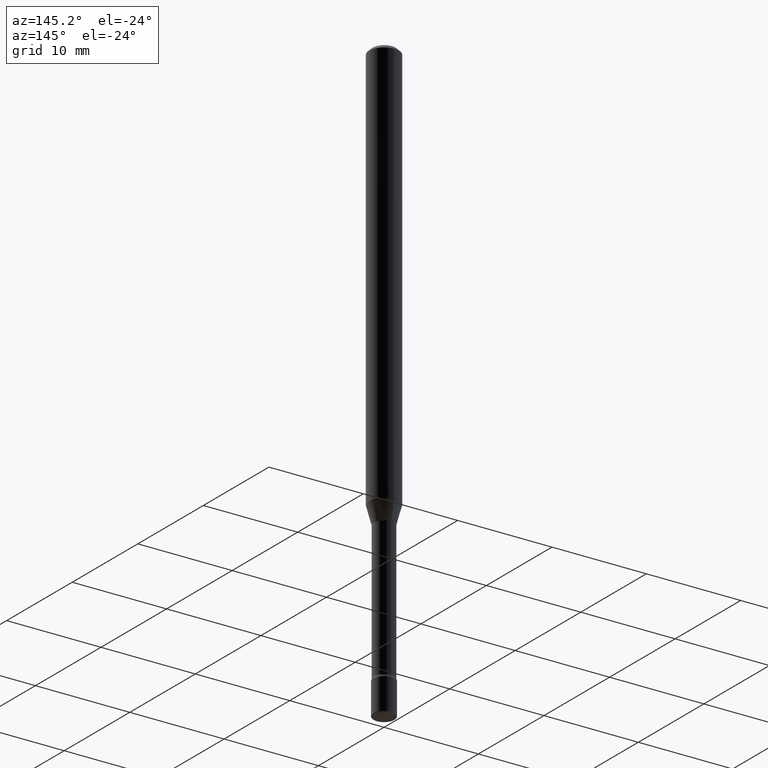
[diagram: clean part render]
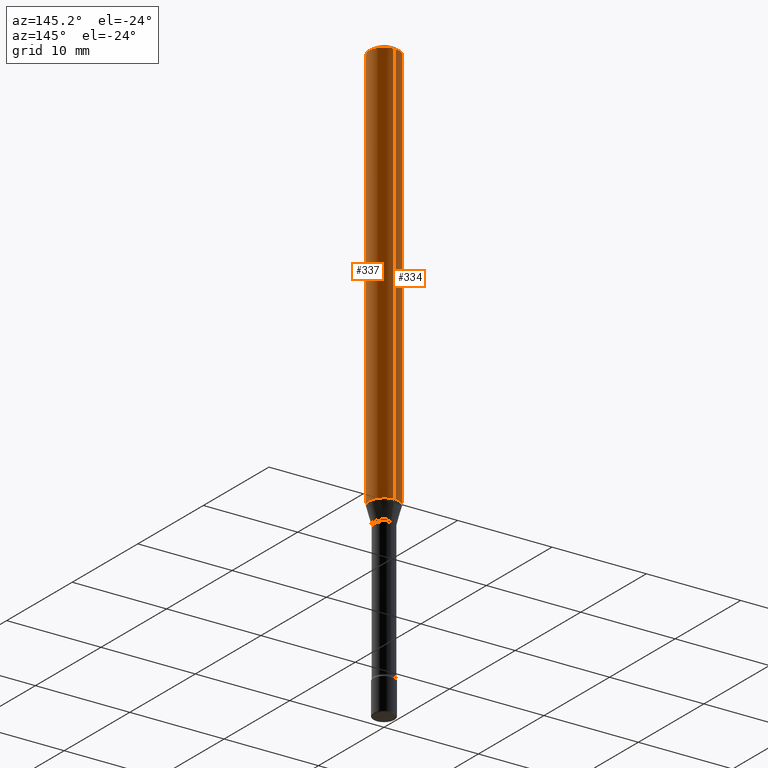
[diagram: same view with one multi-face feature highlighted, each face labeled with its STEP entity id]
A machine part, auxiliary view. The highlighted faces form ONE feature: a constant-radius fillet chain: 2 tangent blend faces with common blend radius 1.5875 mm. The faces share edges in the B-rep.
Their STEP definitions:
[1] entity #334 (Cylinder):
#2 = CARTESIAN_POINT ( 'NONE',  ( -4.364351673553916201E-16, -0.06250000000000000000, 6.963011286457598096E-16 ) ) ;
#23 = AXIS2_PLACEMENT_3D ( 'NONE', #252, #511, #415 ) ;
#33 = CYLINDRICAL_SURFACE ( 'NONE', #168, 0.06250000000000000000 ) ;
#36 = CARTESIAN_POINT ( 'NONE',  ( 4.440892098500625669E-16, 0.06250000000000000000, 2.598456691367323168E-16 ) ) ;
#64 = CIRCLE ( 'NONE', #23, 0.06250000000000000000 ) ;
#71 = EDGE_LOOP ( 'NONE', ( #355, #381, #341, #285 ) ) ;
#90 = DIRECTION ( 'NONE',  ( -2.445355446703953584E-29, 3.491643676072220337E-15, 1.000000000000000000 ) ) ;
#111 = CIRCLE ( 'NONE', #191, 0.06250000000000000000 ) ;
#137 = CARTESIAN_POINT ( 'NONE',  ( -4.364351673553912750E-16, -0.06250000000000005551, -0.01499999999999981036 ) ) ;
#158 = CARTESIAN_POINT ( 'NONE',  ( 4.440892098501044258E-16, 0.06249999999999408112, -1.704612573687109167 ) ) ;
#160 = VERTEX_POINT ( 'NONE', #158 ) ;
#168 = AXIS2_PLACEMENT_3D ( 'NONE', #517, #90, #174 ) ;
#171 = FACE_OUTER_BOUND ( 'NONE', #71, .T. ) ;
#174 = DIRECTION ( 'NONE',  ( -6.982962677686265922E-15, -1.000000000000000000, 3.491643676072219943E-15 ) ) ;
#182 = CARTESIAN_POINT ( 'NONE',  ( -4.364351673553497119E-16, -0.06250000000000591194, -1.704612573687108723 ) ) ;
#191 = AXIS2_PLACEMENT_3D ( 'NONE', #438, #563, #271 ) ;
#216 = EDGE_CURVE ( 'NONE', #220, #569, #64, .T. ) ;
#220 = VERTEX_POINT ( 'NONE', #372 ) ;
#252 = CARTESIAN_POINT ( 'NONE',  ( 3.668033170055936927E-31, -5.237465514108340440E-17, -0.01500000000000002720 ) ) ;
#271 = DIRECTION ( 'NONE',  ( -6.982962677686265922E-15, -1.000000000000000000, 4.370956789862821150E-15 ) ) ;
#285 = ORIENTED_EDGE ( 'NONE', *, *, #216, .F. ) ;
#297 = EDGE_CURVE ( 'NONE', #160, #552, #111, .T. ) ;
#308 = DIRECTION ( 'NONE',  ( -2.445355446703953584E-29, 3.491643676072220337E-15, 1.000000000000000000 ) ) ;
#334 = ADVANCED_FACE ( 'NONE', ( #171 ), #33, .T. ) ;
#341 = ORIENTED_EDGE ( 'NONE', *, *, #388, .T. ) ;
#347 = VECTOR ( 'NONE', #308, 39.37007874015748143 ) ;
#351 = EDGE_CURVE ( 'NONE', #160, #220, #441, .T. ) ;
#355 = ORIENTED_EDGE ( 'NONE', *, *, #351, .F. ) ;
#372 = CARTESIAN_POINT ( 'NONE',  ( 4.440892098501046230E-16, 0.06249999999999995143, -0.01500000000000024578 ) ) ;
#381 = ORIENTED_EDGE ( 'NONE', *, *, #297, .T. ) ;
#388 = EDGE_CURVE ( 'NONE', #552, #569, #485, .T. ) ;
#415 = DIRECTION ( 'NONE',  ( -6.982962677686265922E-15, -1.000000000000000000, 3.483106191921935554E-15 ) ) ;
#438 = CARTESIAN_POINT ( 'NONE',  ( 4.168383641585816332E-29, -5.951899713067785785E-15, -1.704612573687108945 ) ) ;
#441 = LINE ( 'NONE', #36, #347 ) ;
#455 = VECTOR ( 'NONE', #515, 39.37007874015748143 ) ;
#485 = LINE ( 'NONE', #2, #455 ) ;
#511 = DIRECTION ( 'NONE',  ( -2.445355446703953584E-29, 3.491643676072220337E-15, 1.000000000000000000 ) ) ;
#515 = DIRECTION ( 'NONE',  ( -2.445355446703953584E-29, 3.491643676072220337E-15, 1.000000000000000000 ) ) ;
#517 = CARTESIAN_POINT ( 'NONE',  ( -1.169113584055446105E-44, 1.669184350826100908E-30, 4.780733988912460139E-16 ) ) ;
#552 = VERTEX_POINT ( 'NONE', #182 ) ;
#563 = DIRECTION ( 'NONE',  ( -2.445355446703953584E-29, 3.491643676072220337E-15, 1.000000000000000000 ) ) ;
#569 = VERTEX_POINT ( 'NONE', #137 ) ;
[2] entity #337 (Cylinder):
#2 = CARTESIAN_POINT ( 'NONE',  ( -4.364351673553916201E-16, -0.06250000000000000000, 6.963011286457598096E-16 ) ) ;
#17 = AXIS2_PLACEMENT_3D ( 'NONE', #35, #38, #360 ) ;
#35 = CARTESIAN_POINT ( 'NONE',  ( 3.668033170055936927E-31, -5.237465514108340440E-17, -0.01500000000000002720 ) ) ;
#36 = CARTESIAN_POINT ( 'NONE',  ( 4.440892098500625669E-16, 0.06250000000000000000, 2.598456691367323168E-16 ) ) ;
#38 = DIRECTION ( 'NONE',  ( -2.445355446703953584E-29, 3.491643676072220337E-15, 1.000000000000000000 ) ) ;
#50 = EDGE_CURVE ( 'NONE', #552, #160, #518, .T. ) ;
#137 = CARTESIAN_POINT ( 'NONE',  ( -4.364351673553912750E-16, -0.06250000000000005551, -0.01499999999999981036 ) ) ;
#138 = AXIS2_PLACEMENT_3D ( 'NONE', #280, #453, #229 ) ;
#158 = CARTESIAN_POINT ( 'NONE',  ( 4.440892098501044258E-16, 0.06249999999999408112, -1.704612573687109167 ) ) ;
#160 = VERTEX_POINT ( 'NONE', #158 ) ;
#162 = AXIS2_PLACEMENT_3D ( 'NONE', #345, #357, #400 ) ;
#173 = ORIENTED_EDGE ( 'NONE', *, *, #50, .T. ) ;
#182 = CARTESIAN_POINT ( 'NONE',  ( -4.364351673553497119E-16, -0.06250000000000591194, -1.704612573687108723 ) ) ;
#220 = VERTEX_POINT ( 'NONE', #372 ) ;
#229 = DIRECTION ( 'NONE',  ( -6.982962677686265922E-15, -1.000000000000000000, 4.370956789862821150E-15 ) ) ;
#253 = EDGE_LOOP ( 'NONE', ( #173, #327, #419, #572 ) ) ;
#280 = CARTESIAN_POINT ( 'NONE',  ( 4.168383641585816332E-29, -5.951899713067785785E-15, -1.704612573687108945 ) ) ;
#308 = DIRECTION ( 'NONE',  ( -2.445355446703953584E-29, 3.491643676072220337E-15, 1.000000000000000000 ) ) ;
#327 = ORIENTED_EDGE ( 'NONE', *, *, #351, .T. ) ;
#337 = ADVANCED_FACE ( 'NONE', ( #392 ), #473, .T. ) ;
#345 = CARTESIAN_POINT ( 'NONE',  ( -1.169113584055446105E-44, 1.669184350826100908E-30, 4.780733988912460139E-16 ) ) ;
#347 = VECTOR ( 'NONE', #308, 39.37007874015748143 ) ;
#351 = EDGE_CURVE ( 'NONE', #160, #220, #441, .T. ) ;
#357 = DIRECTION ( 'NONE',  ( -2.445355446703953584E-29, 3.491643676072220337E-15, 1.000000000000000000 ) ) ;
#360 = DIRECTION ( 'NONE',  ( -6.982962677686265922E-15, -1.000000000000000000, 3.483106191921935554E-15 ) ) ;
#372 = CARTESIAN_POINT ( 'NONE',  ( 4.440892098501046230E-16, 0.06249999999999995143, -0.01500000000000024578 ) ) ;
#388 = EDGE_CURVE ( 'NONE', #552, #569, #485, .T. ) ;
#392 = FACE_OUTER_BOUND ( 'NONE', #253, .T. ) ;
#400 = DIRECTION ( 'NONE',  ( -6.982962677686265922E-15, -1.000000000000000000, 3.491643676072219943E-15 ) ) ;
#419 = ORIENTED_EDGE ( 'NONE', *, *, #562, .F. ) ;
#441 = LINE ( 'NONE', #36, #347 ) ;
#453 = DIRECTION ( 'NONE',  ( -2.445355446703953584E-29, 3.491643676072220337E-15, 1.000000000000000000 ) ) ;
#455 = VECTOR ( 'NONE', #515, 39.37007874015748143 ) ;
#468 = CIRCLE ( 'NONE', #17, 0.06250000000000000000 ) ;
#473 = CYLINDRICAL_SURFACE ( 'NONE', #162, 0.06250000000000000000 ) ;
#485 = LINE ( 'NONE', #2, #455 ) ;
#515 = DIRECTION ( 'NONE',  ( -2.445355446703953584E-29, 3.491643676072220337E-15, 1.000000000000000000 ) ) ;
#518 = CIRCLE ( 'NONE', #138, 0.06250000000000000000 ) ;
#552 = VERTEX_POINT ( 'NONE', #182 ) ;
#562 = EDGE_CURVE ( 'NONE', #569, #220, #468, .T. ) ;
#569 = VERTEX_POINT ( 'NONE', #137 ) ;
#572 = ORIENTED_EDGE ( 'NONE', *, *, #388, .F. ) ;